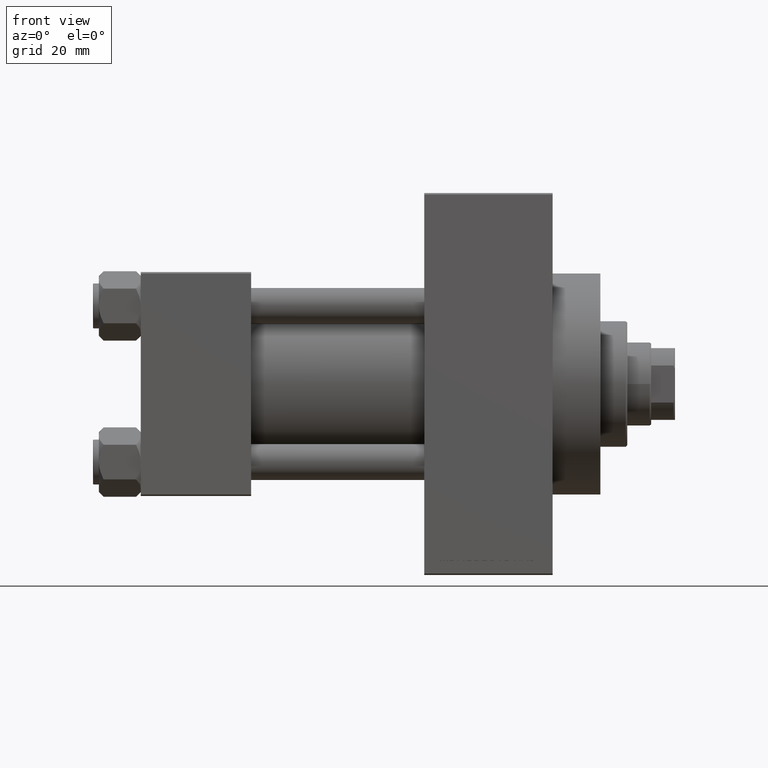
[diagram: clean part render]
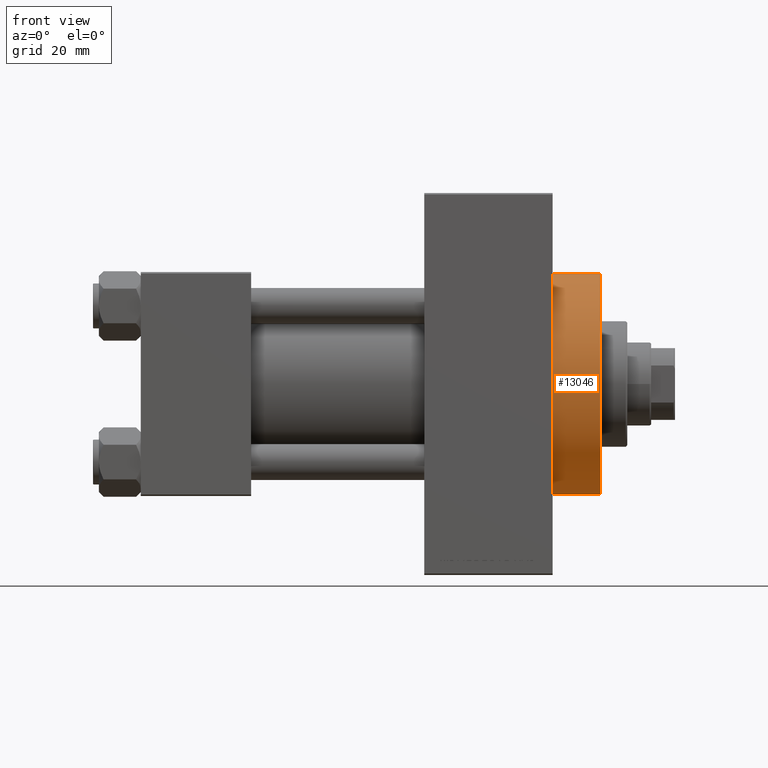
[diagram: same view with one face highlighted and labeled with its STEP entity id]
A machine part, front view. The second image highlights one B-rep face of the part: STEP entity #13046.
In plain terms, the highlighted cylindrical surface (partial cylindrical patch) has radius 37 mm, axis along (-1, -0, -0).
Its self-contained STEP definition (entity closure, byte-faithful):
#4289 = ORIENTED_EDGE ( 'NONE', *, *, #41695, .T. ) ;
#5416 = LINE ( 'NONE', #26914, #8023 ) ;
#6194 = DIRECTION ( 'NONE',  ( -1.000000000000000000, -0.000000000000000000, -0.000000000000000000 ) ) ;
#8023 = VECTOR ( 'NONE', #30725, 1000.000000000000000 ) ;
#8851 = EDGE_CURVE ( 'NONE', #44738, #28817, #37542, .T. ) ;
#9282 = DIRECTION ( 'NONE',  ( 1.000000000000000000, 0.000000000000000000, 0.000000000000000000 ) ) ;
#10614 = CARTESIAN_POINT ( 'NONE',  ( 138.0000000000000000, 4.531193156845206793E-15, -37.00000000000000000 ) ) ;
#11024 = DIRECTION ( 'NONE',  ( 0.000000000000000000, 0.000000000000000000, 1.000000000000000000 ) ) ;
#12898 = CARTESIAN_POINT ( 'NONE',  ( 154.0000000000000284, 4.531193156845206793E-15, -37.00000000000000000 ) ) ;
#12911 = ORIENTED_EDGE ( 'NONE', *, *, #28408, .T. ) ;
#13046 = ADVANCED_FACE ( 'NONE', ( #32750 ), #42742, .T. ) ;
#13132 = AXIS2_PLACEMENT_3D ( 'NONE', #43704, #46817, #11024 ) ;
#18270 = EDGE_LOOP ( 'NONE', ( #33569, #28236, #12911, #4289 ) ) ;
#18488 = AXIS2_PLACEMENT_3D ( 'NONE', #45554, #9282, #46018 ) ;
#19514 = EDGE_CURVE ( 'NONE', #28817, #26507, #34619, .T. ) ;
#23184 = DIRECTION ( 'NONE',  ( 0.000000000000000000, 0.000000000000000000, -1.000000000000000000 ) ) ;
#26507 = VERTEX_POINT ( 'NONE', #10614 ) ;
#26914 = CARTESIAN_POINT ( 'NONE',  ( 154.0000000000000284, 0.000000000000000000, 37.00000000000000000 ) ) ;
#26995 = CARTESIAN_POINT ( 'NONE',  ( 138.0000000000000000, 0.000000000000000000, 0.000000000000000000 ) ) ;
#28236 = ORIENTED_EDGE ( 'NONE', *, *, #8851, .F. ) ;
#28408 = EDGE_CURVE ( 'NONE', #44738, #45369, #5416, .T. ) ;
#28817 = VERTEX_POINT ( 'NONE', #35426 ) ;
#30725 = DIRECTION ( 'NONE',  ( -1.000000000000000000, -0.000000000000000000, -0.000000000000000000 ) ) ;
#31847 = CARTESIAN_POINT ( 'NONE',  ( 154.0000000000000284, 0.000000000000000000, 37.00000000000000000 ) ) ;
#32750 = FACE_OUTER_BOUND ( 'NONE', #18270, .T. ) ;
#33569 = ORIENTED_EDGE ( 'NONE', *, *, #19514, .F. ) ;
#34619 = LINE ( 'NONE', #12898, #42932 ) ;
#35426 = CARTESIAN_POINT ( 'NONE',  ( 154.0000000000000284, 4.531193156845206793E-15, -37.00000000000000000 ) ) ;
#36563 = CIRCLE ( 'NONE', #41861, 37.00000000000000000 ) ;
#37542 = CIRCLE ( 'NONE', #18488, 37.00000000000000000 ) ;
#41015 = CARTESIAN_POINT ( 'NONE',  ( 138.0000000000000000, 0.000000000000000000, 37.00000000000000000 ) ) ;
#41695 = EDGE_CURVE ( 'NONE', #45369, #26507, #36563, .T. ) ;
#41861 = AXIS2_PLACEMENT_3D ( 'NONE', #26995, #45358, #23184 ) ;
#42742 = CYLINDRICAL_SURFACE ( 'NONE', #13132, 37.00000000000000000 ) ;
#42932 = VECTOR ( 'NONE', #6194, 1000.000000000000000 ) ;
#43704 = CARTESIAN_POINT ( 'NONE',  ( 154.0000000000000284, 0.000000000000000000, 0.000000000000000000 ) ) ;
#44738 = VERTEX_POINT ( 'NONE', #31847 ) ;
#45358 = DIRECTION ( 'NONE',  ( 1.000000000000000000, 0.000000000000000000, 0.000000000000000000 ) ) ;
#45369 = VERTEX_POINT ( 'NONE', #41015 ) ;
#45554 = CARTESIAN_POINT ( 'NONE',  ( 154.0000000000000284, 0.000000000000000000, 0.000000000000000000 ) ) ;
#46018 = DIRECTION ( 'NONE',  ( 0.000000000000000000, 0.000000000000000000, -1.000000000000000000 ) ) ;
#46817 = DIRECTION ( 'NONE',  ( -1.000000000000000000, -0.000000000000000000, -0.000000000000000000 ) ) ;